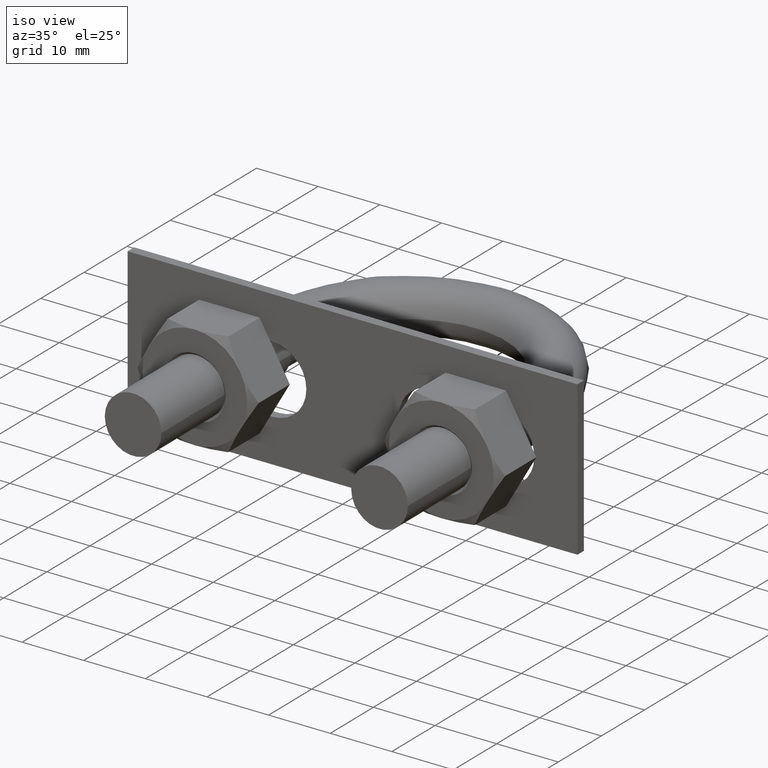
[diagram: clean part render]
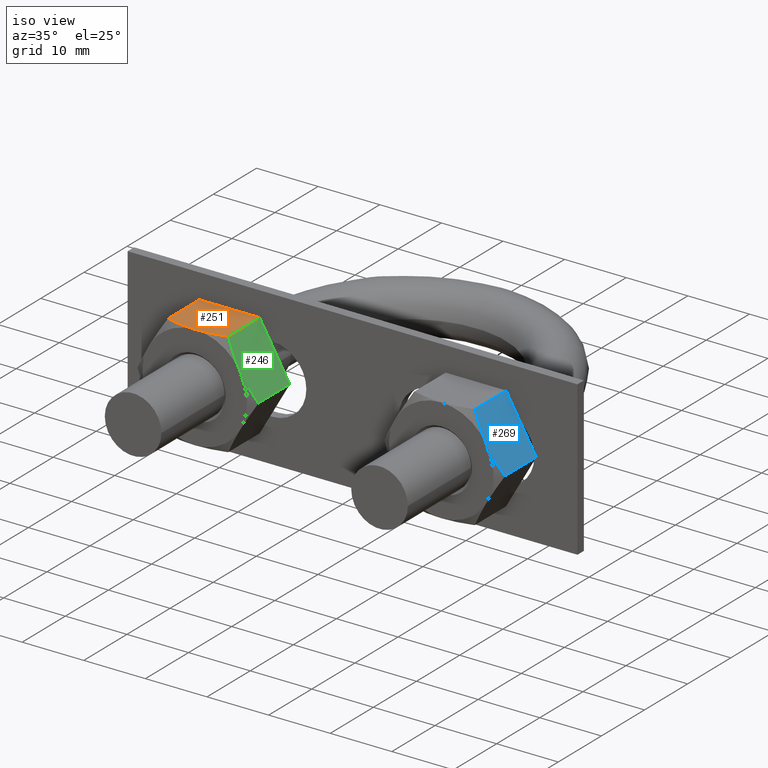
[diagram: same view with three faces highlighted in distinct colors, each labeled with its STEP entity id]
A machine part, iso view with three faces highlighted in distinct colors.
Their STEP definitions:

[orange] entity #251 — the highlighted planar face has unit normal (0, -0, -1).
#251 = ADVANCED_FACE( '', ( #366 ), #367, .F. );
#366 = FACE_OUTER_BOUND( '', #686, .T. );
#367 = PLANE( '', #687 );
#686 = EDGE_LOOP( '', ( #1014, #1015, #1016, #1017, #1018 ) );
#687 = AXIS2_PLACEMENT_3D( '', #1019, #1020, #1021 );
#1014 = ORIENTED_EDGE( '', *, *, #1386, .F. );
#1015 = ORIENTED_EDGE( '', *, *, #1353, .F. );
#1016 = ORIENTED_EDGE( '', *, *, #1387, .F. );
#1017 = ORIENTED_EDGE( '', *, *, #1370, .F. );
#1018 = ORIENTED_EDGE( '', *, *, #1381, .F. );
#1019 = CARTESIAN_POINT( '', ( -24.9074772881118, -7.70000000000000, 8.50000000000000 ) );
#1020 = DIRECTION( '', ( 3.74915180455534E-033, -2.29561756065155E-049, -1.00000000000000 ) );
#1021 = DIRECTION( '', ( -6.12303176911189E-017, -1.00000000000000, 0.000000000000000 ) );
#1353 = EDGE_CURVE( '', #1548, #1551, #1552, .T. );
#1370 = EDGE_CURVE( '', #1580, #1582, #1583, .T. );
#1381 = EDGE_CURVE( '', #1601, #1580, #1603, .T. );
#1386 = EDGE_CURVE( '', #1551, #1601, #1610, .T. );
#1387 = EDGE_CURVE( '', #1582, #1548, #1611, .F. );
#1548 = VERTEX_POINT( '', #1862 );
#1551 = VERTEX_POINT( '', #1865 );
#1552 = B_SPLINE_CURVE_WITH_KNOTS( '', 3, ( #1866, #1867, #1868, #1869, #1870, #1871 ), .UNSPECIFIED., .F., .F., ( 4, 2, 4 ), ( 0.0107224888714710, 0.0132032657403443, 0.0156840426092177 ), .UNSPECIFIED. );
#1580 = VERTEX_POINT( '', #1921 );
#1582 = VERTEX_POINT( '', #1923 );
#1583 = LINE( '', #1924, #1925 );
#1601 = VERTEX_POINT( '', #1947 );
#1603 = LINE( '', #1949, #1950 );
#1610 = B_SPLINE_CURVE_WITH_KNOTS( '', 3, ( #1970, #1971, #1972, #1973, #1974, #1975 ), .UNSPECIFIED., .F., .F., ( 4, 2, 4 ), ( 0.0156840426092177, 0.0181633795370704, 0.0206427164649230 ), .UNSPECIFIED. );
#1611 = LINE( '', #1976, #1977 );
#1862 = CARTESIAN_POINT( '', ( -15.1225006406971, -14.9494446500535, 8.50000000000000 ) );
#1865 = CARTESIAN_POINT( '', ( -20.0000000000000, -15.7000000000000, 8.50000000000000 ) );
#1866 = CARTESIAN_POINT( '', ( -15.1225006406971, -14.9494446500535, 8.50000000000000 ) );
#1867 = CARTESIAN_POINT( '', ( -15.9171260670589, -15.1777799069586, 8.50000000000000 ) );
#1868 = CARTESIAN_POINT( '', ( -16.7187973776761, -15.3663452882827, 8.50000000000000 ) );
#1869 = CARTESIAN_POINT( '', ( -18.3426188305539, -15.6278850822183, 8.50000000000000 ) );
#1870 = CARTESIAN_POINT( '', ( -19.1649212463884, -15.7000000000000, 8.50000000000000 ) );
#1871 = CARTESIAN_POINT( '', ( -20.0000000000000, -15.7000000000000, 8.50000000000000 ) );
#1921 = CARTESIAN_POINT( '', ( -24.8774993593029, -7.70000000000000, 8.50000000000000 ) );
#1923 = CARTESIAN_POINT( '', ( -15.1225006406971, -7.70000000000000, 8.50000000000000 ) );
#1924 = CARTESIAN_POINT( '', ( -29.8000000000000, -7.70000000000000, 8.50000000000000 ) );
#1925 = VECTOR( '', #2334, 1000.00000000000 );
#1947 = CARTESIAN_POINT( '', ( -24.8774993593029, -14.9494446500535, 8.50000000000000 ) );
#1949 = CARTESIAN_POINT( '', ( -24.8774993593029, -7.70000000000000, 8.50000000000000 ) );
#1950 = VECTOR( '', #2357, 1000.00000000000 );
#1970 = CARTESIAN_POINT( '', ( -20.0000000000000, -15.7000000000000, 8.50000000000000 ) );
#1971 = CARTESIAN_POINT( '', ( -20.8345940408718, -15.7000000000000, 8.50000000000000 ) );
#1972 = CARTESIAN_POINT( '', ( -21.6590982732016, -15.6276895388738, 8.50000000000000 ) );
#1973 = CARTESIAN_POINT( '', ( -23.2828074229596, -15.3660056252267, 8.50000000000000 ) );
#1974 = CARTESIAN_POINT( '', ( -24.0838578122272, -15.1774971896907, 8.50000000000000 ) );
#1975 = CARTESIAN_POINT( '', ( -24.8774993593029, -14.9494446500535, 8.50000000000000 ) );
#1976 = CARTESIAN_POINT( '', ( -15.1225006406971, -7.70000000000000, 8.50000000000000 ) );
#1977 = VECTOR( '', #2362, 1000.00000000000 );
#2334 = DIRECTION( '', ( 1.00000000000000, -6.12303176911189E-017, 3.74915180455534E-033 ) );
#2357 = DIRECTION( '', ( 6.12303176911189E-017, 1.00000000000000, -4.95179021115217E-066 ) );
#2362 = DIRECTION( '', ( 6.12303176911189E-017, 1.00000000000000, -4.95179021115217E-066 ) );

[blue] entity #269 — the highlighted planar face has unit normal (-0.866, 0, -0.5).
#269 = ADVANCED_FACE( '', ( #406 ), #407, .F. );
#406 = FACE_OUTER_BOUND( '', #726, .T. );
#407 = PLANE( '', #727 );
#726 = EDGE_LOOP( '', ( #1142, #1143, #1144, #1145, #1146 ) );
#727 = AXIS2_PLACEMENT_3D( '', #1147, #1148, #1149 );
#1142 = ORIENTED_EDGE( '', *, *, #1407, .F. );
#1143 = ORIENTED_EDGE( '', *, *, #1414, .F. );
#1144 = ORIENTED_EDGE( '', *, *, #1415, .F. );
#1145 = ORIENTED_EDGE( '', *, *, #1416, .F. );
#1146 = ORIENTED_EDGE( '', *, *, #1417, .F. );
#1147 = CARTESIAN_POINT( '', ( 24.9074772881118, -7.70000000000000, 8.50000000000000 ) );
#1148 = DIRECTION( '', ( -0.866025403784439, 5.30270106023007E-017, -0.500000000000000 ) );
#1149 = DIRECTION( '', ( -0.500000000000000, 3.06151588455594E-017, 0.866025403784439 ) );
#1407 = EDGE_CURVE( '', #1639, #1635, #1641, .T. );
#1414 = EDGE_CURVE( '', #1653, #1639, #1654, .T. );
#1415 = EDGE_CURVE( '', #1655, #1653, #1656, .F. );
#1416 = EDGE_CURVE( '', #1657, #1655, #1658, .T. );
#1417 = EDGE_CURVE( '', #1635, #1657, #1659, .T. );
#1635 = VERTEX_POINT( '', #2035 );
#1639 = VERTEX_POINT( '', #2044 );
#1641 = B_SPLINE_CURVE_WITH_KNOTS( '', 3, ( #2046, #2047, #2048, #2049, #2050, #2051, #2052, #2053 ), .UNSPECIFIED., .F., .F., ( 4, 2, 2, 4 ), ( 0.00493506423428099, 0.00616384870526321, 0.00739263317624543, 0.00985020211820987 ), .UNSPECIFIED. );
#1653 = VERTEX_POINT( '', #2065 );
#1654 = B_SPLINE_CURVE_WITH_KNOTS( '', 3, ( #2066, #2067, #2068, #2069, #2070, #2071 ), .UNSPECIFIED., .F., .F., ( 4, 2, 4 ), ( 4.83064900410421E-007, 0.00246777364959070, 0.00493506423428099 ), .UNSPECIFIED. );
#1655 = VERTEX_POINT( '', #2072 );
#1656 = LINE( '', #2073, #2074 );
#1657 = VERTEX_POINT( '', #2075 );
#1658 = LINE( '', #2076, #2077 );
#1659 = LINE( '', #2078, #2079 );
#2035 = CARTESIAN_POINT( '', ( 24.9224662525163, -14.9494446500535, 8.47403835209862 ) );
#2044 = CARTESIAN_POINT( '', ( 27.3612159321677, -15.7000000000000, 4.25000000000000 ) );
#2046 = CARTESIAN_POINT( '', ( 27.3612159321677, -15.7000000000000, 4.25000000000000 ) );
#2047 = CARTESIAN_POINT( '', ( 27.1543614605611, -15.7000000000000, 4.60828245459559 ) );
#2048 = CARTESIAN_POINT( '', ( 26.9464724694540, -15.6822887918237, 4.96835674952724 ) );
#2049 = CARTESIAN_POINT( '', ( 26.5352159436566, -15.6136978063788, 5.68067394715264 ) );
#2050 = CARTESIAN_POINT( '', ( 26.3309547652762, -15.5628883495806, 6.03446468612132 ) );
#2051 = CARTESIAN_POINT( '', ( 25.7217813693342, -15.3668505986087, 7.08958395851212 ) );
#2052 = CARTESIAN_POINT( '', ( 25.3204658996231, -15.1781746872645, 7.78468274191512 ) );
#2053 = CARTESIAN_POINT( '', ( 24.9224662525163, -14.9494446500535, 8.47403835209862 ) );
#2065 = CARTESIAN_POINT( '', ( 29.7999656118192, -14.9494446500535, 0.0259616479013807 ) );
#2066 = CARTESIAN_POINT( '', ( 29.7999656118192, -14.9494446500535, 0.0259616479013819 ) );
#2067 = CARTESIAN_POINT( '', ( 29.4009132475383, -15.1787796828723, 0.717140617716315 ) );
#2068 = CARTESIAN_POINT( '', ( 28.9989787792964, -15.3675474634560, 1.41331153802454 ) );
#2069 = CARTESIAN_POINT( '', ( 28.1868332408957, -15.6285851459414, 2.81998887367487 ) );
#2070 = CARTESIAN_POINT( '', ( 27.7765614237886, -15.7000000000000, 3.53060050581789 ) );
#2071 = CARTESIAN_POINT( '', ( 27.3612159321677, -15.7000000000000, 4.25000000000000 ) );
#2072 = CARTESIAN_POINT( '', ( 29.7999656118192, -7.70000000000000, 0.0259616479013815 ) );
#2073 = CARTESIAN_POINT( '', ( 29.7999656118192, -7.70000000000000, 0.0259616479013807 ) );
#2074 = VECTOR( '', #2406, 1000.00000000000 );
#2075 = CARTESIAN_POINT( '', ( 24.9224662525163, -7.70000000000000, 8.47403835209862 ) );
#2076 = CARTESIAN_POINT( '', ( 24.9112159321677, -7.70000000000000, 8.49352447854375 ) );
#2077 = VECTOR( '', #2407, 1000.00000000000 );
#2078 = CARTESIAN_POINT( '', ( 24.9224662525163, -7.70000000000000, 8.47403835209862 ) );
#2079 = VECTOR( '', #2408, 1000.00000000000 );
#2406 = DIRECTION( '', ( 6.12303176911189E-017, 1.00000000000000, -4.95179021115217E-066 ) );
#2407 = DIRECTION( '', ( 0.500000000000000, -3.06151588455594E-017, -0.866025403784439 ) );
#2408 = DIRECTION( '', ( 6.12303176911189E-017, 1.00000000000000, -4.95179021115217E-066 ) );

[green] entity #246 — the highlighted planar face has unit normal (-0.866, 0, -0.5).
#246 = ADVANCED_FACE( '', ( #355 ), #356, .F. );
#355 = FACE_OUTER_BOUND( '', #675, .T. );
#356 = PLANE( '', #676 );
#675 = EDGE_LOOP( '', ( #969, #970, #971, #972, #973 ) );
#676 = AXIS2_PLACEMENT_3D( '', #974, #975, #976 );
#969 = ORIENTED_EDGE( '', *, *, #1355, .F. );
#970 = ORIENTED_EDGE( '', *, *, #1362, .F. );
#971 = ORIENTED_EDGE( '', *, *, #1363, .F. );
#972 = ORIENTED_EDGE( '', *, *, #1364, .F. );
#973 = ORIENTED_EDGE( '', *, *, #1365, .F. );
#974 = CARTESIAN_POINT( '', ( -15.0925227118882, -7.70000000000000, 8.50000000000000 ) );
#975 = DIRECTION( '', ( -0.866025403784439, 5.30270106023007E-017, -0.500000000000000 ) );
#976 = DIRECTION( '', ( -0.500000000000000, 3.06151588455594E-017, 0.866025403784439 ) );
#1355 = EDGE_CURVE( '', #1553, #1549, #1555, .T. );
#1362 = EDGE_CURVE( '', #1567, #1553, #1568, .T. );
#1363 = EDGE_CURVE( '', #1569, #1567, #1570, .F. );
#1364 = EDGE_CURVE( '', #1571, #1569, #1572, .T. );
#1365 = EDGE_CURVE( '', #1549, #1571, #1573, .T. );
#1549 = VERTEX_POINT( '', #1863 );
#1553 = VERTEX_POINT( '', #1872 );
#1555 = B_SPLINE_CURVE_WITH_KNOTS( '', 3, ( #1874, #1875, #1876, #1877, #1878, #1879, #1880, #1881 ), .UNSPECIFIED., .F., .F., ( 4, 2, 2, 4 ), ( 0.00493506423428099, 0.00616384870526321, 0.00739263317624543, 0.00985020211820987 ), .UNSPECIFIED. );
#1567 = VERTEX_POINT( '', #1893 );
#1568 = B_SPLINE_CURVE_WITH_KNOTS( '', 3, ( #1894, #1895, #1896, #1897, #1898, #1899 ), .UNSPECIFIED., .F., .F., ( 4, 2, 4 ), ( 4.83064900408932E-007, 0.00246777364959070, 0.00493506423428099 ), .UNSPECIFIED. );
#1569 = VERTEX_POINT( '', #1900 );
#1570 = LINE( '', #1901, #1902 );
#1571 = VERTEX_POINT( '', #1903 );
#1572 = LINE( '', #1904, #1905 );
#1573 = LINE( '', #1906, #1907 );
#1863 = CARTESIAN_POINT( '', ( -15.0775337474837, -14.9494446500535, 8.47403835209862 ) );
#1872 = CARTESIAN_POINT( '', ( -12.6387840678323, -15.7000000000000, 4.25000000000000 ) );
#1874 = CARTESIAN_POINT( '', ( -12.6387840678323, -15.7000000000000, 4.25000000000000 ) );
#1875 = CARTESIAN_POINT( '', ( -12.8456385394390, -15.7000000000000, 4.60828245459559 ) );
#1876 = CARTESIAN_POINT( '', ( -13.0535275305460, -15.6822887918237, 4.96835674952724 ) );
#1877 = CARTESIAN_POINT( '', ( -13.4647840563434, -15.6136978063788, 5.68067394715264 ) );
#1878 = CARTESIAN_POINT( '', ( -13.6690452347238, -15.5628883495806, 6.03446468612132 ) );
#1879 = CARTESIAN_POINT( '', ( -14.2782186306658, -15.3668505986087, 7.08958395851212 ) );
#1880 = CARTESIAN_POINT( '', ( -14.6795341003769, -15.1781746872645, 7.78468274191512 ) );
#1881 = CARTESIAN_POINT( '', ( -15.0775337474837, -14.9494446500535, 8.47403835209862 ) );
#1893 = CARTESIAN_POINT( '', ( -10.2000343881808, -14.9494446500535, 0.0259616479013807 ) );
#1894 = CARTESIAN_POINT( '', ( -10.2000343881808, -14.9494446500535, 0.0259616479013802 ) );
#1895 = CARTESIAN_POINT( '', ( -10.5990867524617, -15.1787796828723, 0.717140617716314 ) );
#1896 = CARTESIAN_POINT( '', ( -11.0010212207036, -15.3675474634560, 1.41331153802454 ) );
#1897 = CARTESIAN_POINT( '', ( -11.8131667591043, -15.6285851459414, 2.81998887367487 ) );
#1898 = CARTESIAN_POINT( '', ( -12.2234385762114, -15.7000000000000, 3.53060050581789 ) );
#1899 = CARTESIAN_POINT( '', ( -12.6387840678323, -15.7000000000000, 4.25000000000000 ) );
#1900 = CARTESIAN_POINT( '', ( -10.2000343881808, -7.70000000000000, 0.0259616479013815 ) );
#1901 = CARTESIAN_POINT( '', ( -10.2000343881808, -7.70000000000000, 0.0259616479013807 ) );
#1902 = VECTOR( '', #2322, 1000.00000000000 );
#1903 = CARTESIAN_POINT( '', ( -15.0775337474837, -7.70000000000000, 8.47403835209862 ) );
#1904 = CARTESIAN_POINT( '', ( -15.0887840678323, -7.70000000000000, 8.49352447854375 ) );
#1905 = VECTOR( '', #2323, 1000.00000000000 );
#1906 = CARTESIAN_POINT( '', ( -15.0775337474837, -7.70000000000000, 8.47403835209862 ) );
#1907 = VECTOR( '', #2324, 1000.00000000000 );
#2322 = DIRECTION( '', ( 6.12303176911189E-017, 1.00000000000000, -4.95179021115217E-066 ) );
#2323 = DIRECTION( '', ( 0.500000000000000, -3.06151588455594E-017, -0.866025403784439 ) );
#2324 = DIRECTION( '', ( 6.12303176911189E-017, 1.00000000000000, -4.95179021115217E-066 ) );